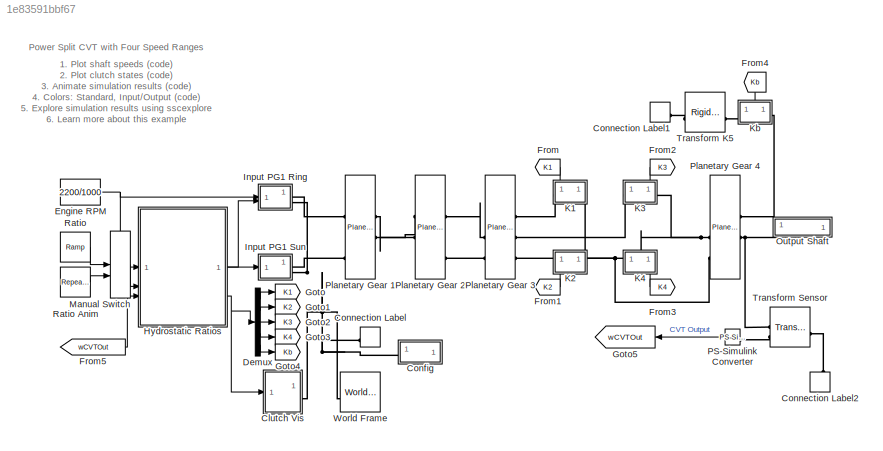
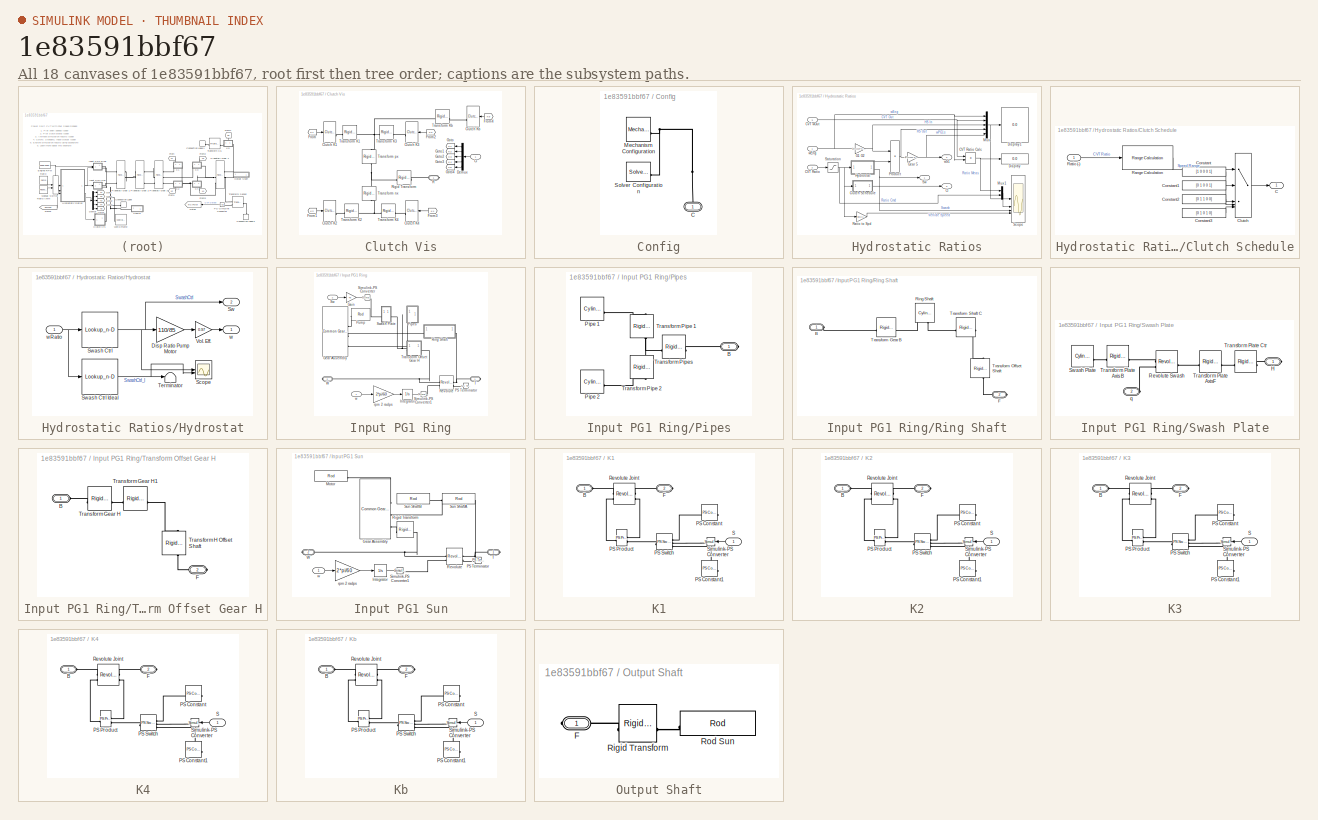
[diagram: thumbnail index - all 18 canvases of the model, root first then tree order]
MODEL slx_1e83591bbf67
KIND model
CONFIG AbsTol = 1e-4
CONFIG EnableMultiTasking = on
CONFIG FixedStep = auto
CONFIG MaxStep = 0.01
CONFIG MinStep = auto
CONFIG PostLoadFcn = set_param([bdroot '/Manual Switch'], 'sw', '1')
CONFIG PreLoadFcn = cvtPar = sm_cvt_power_split_pg_4range_param('InputOutput', HMPST);
CONFIG RelTol = 1e-3
CONFIG SampleTimeConstraint = Unconstrained
CONFIG SolverName = daessc
CONFIG StartFcn = tic
CONFIG StartTime = 0.0
CONFIG StopFcn = Elapsed_Sim_Time = toc;\ndisp(['Elapsed Sim Time = ' num2str(Elapsed_Sim_Time)]);
CONFIG StopTime = cvtPar.ratioInp.t(end)
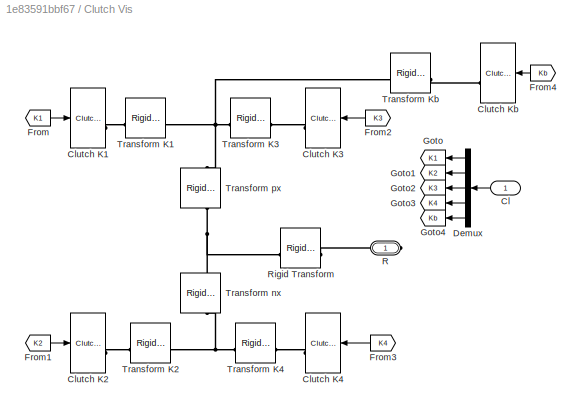
BLOCK [SubSystem] Clutch Vis
BLOCK [Inport] Clutch Vis/Cl
BLOCK [Reference] Clutch Vis/Clutch K1  REF=planetary_gear_lib/Clutch Visual  (lib defined in slx_244bc64403c8, slx_f92dde08cbf6)
  SourceBlock = planetary_gear_lib/Clutch Visual
  SourceType = SubSystem
BLOCK [Reference] Clutch Vis/Clutch K2  REF=planetary_gear_lib/Clutch Visual  (lib defined in slx_244bc64403c8, slx_f92dde08cbf6)
  SourceBlock = planetary_gear_lib/Clutch Visual
  SourceType = SubSystem
BLOCK [Reference] Clutch Vis/Clutch K3  REF=planetary_gear_lib/Clutch Visual  (lib defined in slx_244bc64403c8, slx_f92dde08cbf6)
  SourceBlock = planetary_gear_lib/Clutch Visual
  SourceType = SubSystem
BLOCK [Reference] Clutch Vis/Clutch K4  REF=planetary_gear_lib/Clutch Visual  (lib defined in slx_244bc64403c8, slx_f92dde08cbf6)
  SourceBlock = planetary_gear_lib/Clutch Visual
  SourceType = SubSystem
BLOCK [Reference] Clutch Vis/Clutch Kb  REF=planetary_gear_lib/Clutch Visual  (lib defined in slx_244bc64403c8, slx_f92dde08cbf6)
  SourceBlock = planetary_gear_lib/Clutch Visual
  SourceType = SubSystem
BLOCK [Demux] Clutch Vis/Demux
  Outputs = 5
BLOCK [From] Clutch Vis/From
  GotoTag = K1
BLOCK [From] Clutch Vis/From1
  GotoTag = K2
BLOCK [From] Clutch Vis/From2
  GotoTag = K3
BLOCK [From] Clutch Vis/From3
  GotoTag = K4
BLOCK [From] Clutch Vis/From4
  GotoTag = Kb
BLOCK [Goto] Clutch Vis/Goto
  GotoTag = K1
BLOCK [Goto] Clutch Vis/Goto1
  GotoTag = K2
BLOCK [Goto] Clutch Vis/Goto2
  GotoTag = K3
BLOCK [Goto] Clutch Vis/Goto3
  GotoTag = K4
BLOCK [Goto] Clutch Vis/Goto4
  GotoTag = Kb
BLOCK [PMIOPort] Clutch Vis/R
  Side = Right
BLOCK [Reference] Clutch Vis/Rigid Transform  REF=sm_lib/Frames and
Transforms/Rigid
Transform
  SourceBlock = sm_lib/Frames and\nTransforms/Rigid\nTransform
  SourceType = Rigid\nTransform
BLOCK [Reference] Clutch Vis/Transform K1  REF=sm_lib/Frames and
Transforms/Rigid
Transform
  SourceBlock = sm_lib/Frames and\nTransforms/Rigid\nTransform
  SourceType = Rigid\nTransform
BLOCK [Reference] Clutch Vis/Transform K2  REF=sm_lib/Frames and
Transforms/Rigid
Transform
  SourceBlock = sm_lib/Frames and\nTransforms/Rigid\nTransform
  SourceType = Rigid\nTransform
BLOCK [Reference] Clutch Vis/Transform K3  REF=sm_lib/Frames and
Transforms/Rigid
Transform
  SourceBlock = sm_lib/Frames and\nTransforms/Rigid\nTransform
  SourceType = Rigid\nTransform
BLOCK [Reference] Clutch Vis/Transform K4  REF=sm_lib/Frames and
Transforms/Rigid
Transform
  SourceBlock = sm_lib/Frames and\nTransforms/Rigid\nTransform
  SourceType = Rigid\nTransform
BLOCK [Reference] Clutch Vis/Transform Kb  REF=sm_lib/Frames and
Transforms/Rigid
Transform
  SourceBlock = sm_lib/Frames and\nTransforms/Rigid\nTransform
  SourceType = Rigid\nTransform
BLOCK [Reference] Clutch Vis/Transform nx  REF=sm_lib/Frames and
Transforms/Rigid
Transform
  NameLocation = right
  SourceBlock = sm_lib/Frames and\nTransforms/Rigid\nTransform
  SourceType = Rigid\nTransform
BLOCK [Reference] Clutch Vis/Transform px  REF=sm_lib/Frames and
Transforms/Rigid
Transform
  NameLocation = right
  SourceBlock = sm_lib/Frames and\nTransforms/Rigid\nTransform
  SourceType = Rigid\nTransform
BLOCK [SubSystem] Config
BLOCK [PMIOPort] Config/C
  NameLocation = right
  Side = Left
BLOCK [Reference] Config/Mechanism Configuration  REF=sm_lib/Utilities/Mechanism
Configuration
  SourceBlock = sm_lib/Utilities/Mechanism\nConfiguration
  SourceType = Mechanism\nConfiguration
BLOCK [Reference] Config/Solver Configuration  REF=nesl_utility/Solver
Configuration
  SourceBlock = nesl_utility/Solver\nConfiguration
  SourceType = Solver\nConfiguration
BLOCK [ConnectionLabel] Connection Label
  Label = W
  NameLocation = left
BLOCK [ConnectionLabel] Connection Label1
  Label = W
BLOCK [ConnectionLabel] Connection Label2
  Label = W
  NameLocation = left
BLOCK [Demux] Demux
  Outputs = 5
BLOCK [Constant] Engine RPM
  NameLocation = top
  Value = 2200/1000
BLOCK [From] From
  GotoTag = K1
  NameLocation = top
BLOCK [From] From1
  GotoTag = K2
BLOCK [From] From2
  GotoTag = K3
  NameLocation = top
BLOCK [From] From3
  GotoTag = K4
BLOCK [From] From4
  GotoTag = Kb
  NameLocation = left
BLOCK [From] From5
  GotoTag = wCVTOut
BLOCK [Goto] Goto
  GotoTag = K1
BLOCK [Goto] Goto1
  GotoTag = K2
BLOCK [Goto] Goto2
  GotoTag = K3
BLOCK [Goto] Goto3
  GotoTag = K4
BLOCK [Goto] Goto4
  GotoTag = Kb
BLOCK [Goto] Goto5
  GotoTag = wCVTOut
  NameLocation = top
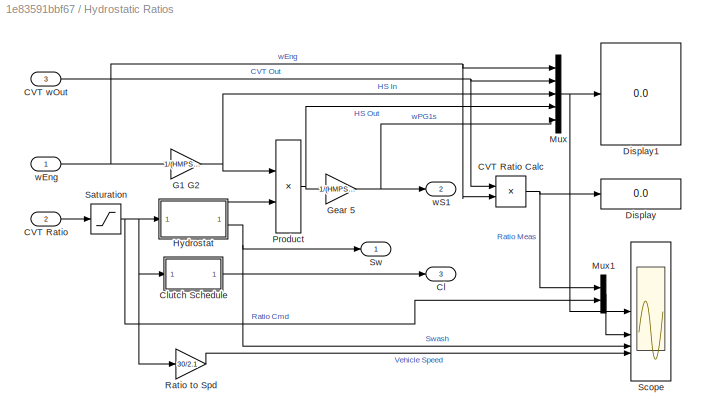
BLOCK [SubSystem] Hydrostatic Ratios
BLOCK [Inport] Hydrostatic Ratios/CVT Ratio
  Port = 2
BLOCK [Product] Hydrostatic Ratios/CVT Ratio Calc
  Inputs = */
BLOCK [Inport] Hydrostatic Ratios/CVT wOut
  Port = 3
BLOCK [Outport] Hydrostatic Ratios/Cl
  Port = 3
BLOCK [SubSystem] Hydrostatic Ratios/Clutch Schedule
BLOCK [Outport] Hydrostatic Ratios/Clutch Schedule/C
BLOCK [MultiPortSwitch] Hydrostatic Ratios/Clutch Schedule/Clutch
  InputSameDT = off
  Inputs = 4
  SaturateOnIntegerOverflow = off
BLOCK [Constant] Hydrostatic Ratios/Clutch Schedule/Constant
  Value = [1 0 0 0 1]
BLOCK [Constant] Hydrostatic Ratios/Clutch Schedule/Constant1
  Value = [0 1 0 0 1]
BLOCK [Constant] Hydrostatic Ratios/Clutch Schedule/Constant2
  Value = [0 1 1 0 0]
BLOCK [Constant] Hydrostatic Ratios/Clutch Schedule/Constant3
  Value = [0 1 0 1 0]
BLOCK [Reference] Hydrostatic Ratios/Clutch Schedule/Range Calculation  REF=sm_wheel_loader_lib/Controller/CVT Ratio Ctrl/Range Calculation  (lib defined in slx_2f13f0afc9e9, slx_78fdec152d5c)
  SourceBlock = sm_wheel_loader_lib/Controller/CVT Ratio Ctrl/Range Calculation
BLOCK [Inport] Hydrostatic Ratios/Clutch Schedule/Ratio (-)
BLOCK [Display] Hydrostatic Ratios/Display
  Decimation = 1
BLOCK [Display] Hydrostatic Ratios/Display1
  Decimation = 1
BLOCK [Gain] Hydrostatic Ratios/G1 G2
  Gain = 1/(HMPST.GearTrain.Gear2.TeethNum/HMPST.GearTrain.Gear1.TeethNum*HMPST.GearTrain.Gear3.TeethNum/HMPST.GearTrain.Gear2.TeethNum)
BLOCK [Gain] Hydrostatic Ratios/Gear 5
  Gain = 1/(HMPST.GearTrain.Gear5.TeethNum/HMPST.GearTrain.Gear4.TeethNum)
BLOCK [SubSystem] Hydrostatic Ratios/Hydrostat
BLOCK [Gain] Hydrostatic Ratios/Hydrostat/Disp Ratio Pump Motor
  Gain = 110/85
BLOCK [Scope] Hydrostatic Ratios/Hydrostat/Scope
  Floating = off
  NumInputPorts = 2
  ScopeSpecificationString = Simulink.scopes.TimeScopeBlockCfg('CurrentConfiguration', extmgr.ConfigurationSet(extmgr.Configuration('Core','General UI',true),extmgr.Configuration('Core','Source UI',true),extmgr.Configuration('Sources','WiredSimulink',true,'DataLoggingVariableName','ScopeData1'),extmgr.Configuration('Visuals','Time Domain',true,'SerializedDisplays',{struct('MinYLimReal','-0.92168','MaxYLimReal','0.94055','YLab...<+1411ch>
BLOCK [Outport] Hydrostatic Ratios/Hydrostat/Sw
  Port = 2
BLOCK [Lookup_n-D] Hydrostatic Ratios/Hydrostat/Swash Ctrl
  BeginIndexSearchUsingPreviousIndexResult = on
  BreakpointsForDimension1 = HMPST.Ctrl.Swash.XY_A(:,2)
  InputPortMap = u0
  InternalRulePriority = Speed
  NumberOfTableDimensions = 1
  RndMeth = Simplest
  Table = HMPST.Ctrl.Swash.XY_A(:,1)
BLOCK [Lookup_n-D] Hydrostatic Ratios/Hydrostat/Swash Ctrl Ideal
  BeginIndexSearchUsingPreviousIndexResult = on
  BreakpointsForDimension1 = HMPST.Ctrl.Swash.XY_I(:,2)
  InputPortMap = u0
  InternalRulePriority = Speed
  NumberOfTableDimensions = 1
  RndMeth = Simplest
  Table = HMPST.Ctrl.Swash.XY_I(:,1)
BLOCK [Terminator] Hydrostatic Ratios/Hydrostat/Terminator
BLOCK [Gain] Hydrostatic Ratios/Hydrostat/Vol. Eff.
  Gain = 0.97
BLOCK [Outport] Hydrostatic Ratios/Hydrostat/w
BLOCK [Inport] Hydrostatic Ratios/Hydrostat/wRatio
BLOCK [Mux] Hydrostatic Ratios/Mux
  DisplayOption = bar
  Inputs = 5
BLOCK [Mux] Hydrostatic Ratios/Mux1
  DisplayOption = bar
  Inputs = 2
BLOCK [Product] Hydrostatic Ratios/Product
BLOCK [Gain] Hydrostatic Ratios/Ratio to Spd
  Gain = 30/2.1
BLOCK [Saturate] Hydrostatic Ratios/Saturation
  UpperLimit = 2.1
  ZeroCross = off
BLOCK [Scope] Hydrostatic Ratios/Scope
  Floating = off
  NameLocation = top
  NumInputPorts = 4
  ScopeSpecificationString = Simulink.scopes.TimeScopeBlockCfg('CurrentConfiguration', extmgr.ConfigurationSet(extmgr.Configuration('Core','General UI',true),extmgr.Configuration('Core','Source UI',true),extmgr.Configuration('Sources','WiredSimulink',true),extmgr.Configuration('Visuals','Time Domain',true,'SerializedDisplays',{struct('MinYLimReal','-4.0523','MaxYLimReal','5.54315','YLabelReal','','MinYLimMag','0.00000','MaxYL...<+3611ch>
BLOCK [Outport] Hydrostatic Ratios/Sw
BLOCK [Inport] Hydrostatic Ratios/wEng
BLOCK [Outport] Hydrostatic Ratios/wS1
  Port = 2
BLOCK [SubSystem] Input PG1 Ring
  NameLocation = top
  Tag = PublishSubsystem
BLOCK [Gain] Input PG1 Ring/Gain
  Gain = 45
BLOCK [Reference] Input PG1 Ring/Gear Assembly  REF=Multibody_Parts_Lib/Gears/Assemblies/Common Gear Assembly
  SourceBlock = Multibody_Parts_Lib/Gears/Assemblies/Common Gear Assembly
  SourceType = Common Gear Assembly
  Tag = PublishSubsystem
BLOCK [Integrator] Input PG1 Ring/Integrator
BLOCK [Reference] Input PG1 Ring/PS Terminator  REF=fl_lib/Physical Signals/Sinks/PS Terminator
  SourceBlock = fl_lib/Physical Signals/Sinks/PS Terminator
  SourceType = PS Terminator
BLOCK [SubSystem] Input PG1 Ring/Pipes
BLOCK [PMIOPort] Input PG1 Ring/Pipes/B
  Side = Right
BLOCK [Reference] Input PG1 Ring/Pipes/Pipe 1  REF=sm_lib/Body Elements/Cylindrical Solid
  SourceBlock = sm_lib/Body Elements/Cylindrical Solid
  SourceType = Cylindrical Solid
BLOCK [Reference] Input PG1 Ring/Pipes/Pipe 2  REF=sm_lib/Body Elements/Cylindrical Solid
  SourceBlock = sm_lib/Body Elements/Cylindrical Solid
  SourceType = Cylindrical Solid
BLOCK [Reference] Input PG1 Ring/Pipes/Transform Pipe 1  REF=sm_lib/Frames and
Transforms/Rigid
Transform
  NameLocation = left
  SourceBlock = sm_lib/Frames and\nTransforms/Rigid\nTransform
  SourceType = Rigid\nTransform
BLOCK [Reference] Input PG1 Ring/Pipes/Transform Pipe 2  REF=sm_lib/Frames and
Transforms/Rigid
Transform
  NameLocation = left
  SourceBlock = sm_lib/Frames and\nTransforms/Rigid\nTransform
  SourceType = Rigid\nTransform
BLOCK [Reference] Input PG1 Ring/Pipes/Transform Pipes  REF=sm_lib/Frames and
Transforms/Rigid
Transform
  SourceBlock = sm_lib/Frames and\nTransforms/Rigid\nTransform
  SourceType = Rigid\nTransform
BLOCK [Reference] Input PG1 Ring/Pump  REF=Multibody_Parts_Lib/Basic/Rod
  SourceBlock = Multibody_Parts_Lib/Basic/Rod
  SourceType = Rod
BLOCK [Reference] Input PG1 Ring/Revolute  REF=sm_lib/Joints/Revolute Joint
  SourceBlock = sm_lib/Joints/Revolute Joint
  SourceType = Revolute Joint
BLOCK [SubSystem] Input PG1 Ring/Ring Shaft
BLOCK [PMIOPort] Input PG1 Ring/Ring Shaft/B
  Side = Left
BLOCK [PMIOPort] Input PG1 Ring/Ring Shaft/F
  Port = 2
  Side = Right
BLOCK [Reference] Input PG1 Ring/Ring Shaft/Ring Shaft  REF=Multibody_Parts_Lib/Basic/Cylinder
  NameLocation = right
  SourceBlock = Multibody_Parts_Lib/Basic/Cylinder
  SourceType = Cylinder with Hole
BLOCK [Reference] Input PG1 Ring/Ring Shaft/Transform Gear B  REF=sm_lib/Frames and
Transforms/Rigid
Transform
  SourceBlock = sm_lib/Frames and\nTransforms/Rigid\nTransform
  SourceType = Rigid\nTransform
BLOCK [Reference] Input PG1 Ring/Ring Shaft/Transform Offset Shaft  REF=sm_lib/Frames and
Transforms/Rigid
Transform
  NameLocation = right
  SourceBlock = sm_lib/Frames and\nTransforms/Rigid\nTransform
  SourceType = Rigid\nTransform
BLOCK [Reference] Input PG1 Ring/Ring Shaft/Transform Shaft C  REF=sm_lib/Frames and
Transforms/Rigid
Transform
  SourceBlock = sm_lib/Frames and\nTransforms/Rigid\nTransform
  SourceType = Rigid\nTransform
BLOCK [Reference] Input PG1 Ring/Simulink-PS Converter  REF=nesl_utility/Simulink-PS
Converter
  SourceBlock = nesl_utility/Simulink-PS\nConverter
  SourceType = Simulink-PS\nConverter
BLOCK [Reference] Input PG1 Ring/Simulink-PS Converter1  REF=nesl_utility/Simulink-PS
Converter
  SourceBlock = nesl_utility/Simulink-PS\nConverter
  SourceType = Simulink-PS\nConverter
BLOCK [Inport] Input PG1 Ring/Sw
  Port = 2
BLOCK [SubSystem] Input PG1 Ring/Swash Plate
BLOCK [PMIOPort] Input PG1 Ring/Swash Plate/H
  Side = Right
BLOCK [Reference] Input PG1 Ring/Swash Plate/Revolute Swash  REF=sm_lib/Joints/Revolute Joint
  SourceBlock = sm_lib/Joints/Revolute Joint
  SourceType = Revolute Joint
BLOCK [Reference] Input PG1 Ring/Swash Plate/Swash Plate  REF=sm_lib/Body Elements/Cylindrical Solid
  SourceBlock = sm_lib/Body Elements/Cylindrical Solid
  SourceType = Cylindrical Solid
BLOCK [Reference] Input PG1 Ring/Swash Plate/Transform Plate Axis B  REF=sm_lib/Frames and
Transforms/Rigid
Transform
  SourceBlock = sm_lib/Frames and\nTransforms/Rigid\nTransform
  SourceType = Rigid\nTransform
BLOCK [Reference] Input PG1 Ring/Swash Plate/Transform Plate AxisF  REF=sm_lib/Frames and
Transforms/Rigid
Transform
  SourceBlock = sm_lib/Frames and\nTransforms/Rigid\nTransform
  SourceType = Rigid\nTransform
BLOCK [Reference] Input PG1 Ring/Swash Plate/Transform Plate Ctr  REF=sm_lib/Frames and
Transforms/Rigid
Transform
  SourceBlock = sm_lib/Frames and\nTransforms/Rigid\nTransform
  SourceType = Rigid\nTransform
BLOCK [PMIOPort] Input PG1 Ring/Swash Plate/q
  Port = 2
  Side = Left
BLOCK [PMIOPort] Input PG1 Ring/T
  Side = Right
BLOCK [SubSystem] Input PG1 Ring/Transform Offset Gear H
BLOCK [PMIOPort] Input PG1 Ring/Transform Offset Gear H/B
  Side = Left
BLOCK [PMIOPort] Input PG1 Ring/Transform Offset Gear H/F
  Port = 2
  Side = Right
BLOCK [Reference] Input PG1 Ring/Transform Offset Gear H/Transform Gear H  REF=sm_lib/Frames and
Transforms/Rigid
Transform
  SourceBlock = sm_lib/Frames and\nTransforms/Rigid\nTransform
  SourceType = Rigid\nTransform
BLOCK [Reference] Input PG1 Ring/Transform Offset Gear H/Transform Gear H1  REF=sm_lib/Frames and
Transforms/Rigid
Transform
  SourceBlock = sm_lib/Frames and\nTransforms/Rigid\nTransform
  SourceType = Rigid\nTransform
BLOCK [Reference] Input PG1 Ring/Transform Offset Gear H/Transform H Offset Shaft  REF=sm_lib/Frames and
Transforms/Rigid
Transform
  NameLocation = left
  SourceBlock = sm_lib/Frames and\nTransforms/Rigid\nTransform
  SourceType = Rigid\nTransform
BLOCK [PMIOPort] Input PG1 Ring/W
  Port = 2
  Side = Right
BLOCK [Gain] Input PG1 Ring/rpm 2 radps
  Gain = 2*pi/60
BLOCK [Inport] Input PG1 Ring/w
BLOCK [SubSystem] Input PG1 Sun
  NameLocation = top
  Tag = PublishSubsystem
BLOCK [Reference] Input PG1 Sun/Gear Assembly  REF=Multibody_Parts_Lib/Gears/Assemblies/Common Gear Assembly
  SourceBlock = Multibody_Parts_Lib/Gears/Assemblies/Common Gear Assembly
  SourceType = Common Gear Assembly
  Tag = PublishSubsystem
BLOCK [Integrator] Input PG1 Sun/Integrator
BLOCK [Reference] Input PG1 Sun/Motor  REF=Multibody_Parts_Lib/Basic/Rod
  SourceBlock = Multibody_Parts_Lib/Basic/Rod
  SourceType = Rod
BLOCK [Reference] Input PG1 Sun/PS Terminator  REF=fl_lib/Physical Signals/Sinks/PS Terminator
  SourceBlock = fl_lib/Physical Signals/Sinks/PS Terminator
  SourceType = PS Terminator
BLOCK [Reference] Input PG1 Sun/Revolute  REF=sm_lib/Joints/Revolute Joint
  SourceBlock = sm_lib/Joints/Revolute Joint
  SourceType = Revolute Joint
BLOCK [Reference] Input PG1 Sun/Rigid Transform  REF=sm_lib/Frames and
Transforms/Rigid
Transform
  SourceBlock = sm_lib/Frames and\nTransforms/Rigid\nTransform
  SourceType = Rigid\nTransform
BLOCK [Reference] Input PG1 Sun/Simulink-PS Converter1  REF=nesl_utility/Simulink-PS
Converter
  SourceBlock = nesl_utility/Simulink-PS\nConverter
  SourceType = Simulink-PS\nConverter
BLOCK [Reference] Input PG1 Sun/Sun ShaftA  REF=Multibody_Parts_Lib/Basic/Rod
  NameLocation = top
  SourceBlock = Multibody_Parts_Lib/Basic/Rod
  SourceType = Rod
BLOCK [Reference] Input PG1 Sun/Sun ShaftB  REF=Multibody_Parts_Lib/Basic/Rod
  NameLocation = top
  SourceBlock = Multibody_Parts_Lib/Basic/Rod
  SourceType = Rod
BLOCK [PMIOPort] Input PG1 Sun/T
  NameLocation = top
  Side = Right
BLOCK [PMIOPort] Input PG1 Sun/W
  NameLocation = top
  Port = 2
  Side = Right
BLOCK [Gain] Input PG1 Sun/rpm 2 radps
  Gain = 2*pi/60
BLOCK [Inport] Input PG1 Sun/w
BLOCK [SubSystem] K1
  PortSchema = {"entries":[{"content":{"sides":[{"content":{"connectorIds":["LConn1"]},"type":"ConnectorPlacement.EquallySpacedRectSide","uuid":"8540058f-cef1-4155-b235-6fcdc2adbf7a"},{"content":{"connectorIds":["RConn1"],"side":"RIGHT"},"type":"ConnectorPlacement.EquallySpacedRectSide","uuid":"a5955f9a-e2a5-407c-ab0f-07844d9b5a94"},{"content":{"connectorIds":["In1"],"side":"TOP"},"type":"ConnectorPlacement.Equa...<+250ch>  <repeated x5 — deduplicated; at blocks: K1, K2, K3, K4, Kb>
BLOCK [PMIOPort] K1/B
  Side = Left
BLOCK [PMIOPort] K1/F
  Port = 2
  Side = Right
BLOCK [Reference] K1/PS Constant  REF=fl_lib/Physical Signals/Sources/PS Constant
  NameLocation = top
  SourceBlock = fl_lib/Physical Signals/Sources/PS Constant
  SourceType = PS Constant
BLOCK [Reference] K1/PS Constant1  REF=fl_lib/Physical Signals/Sources/PS Constant
  NameLocation = top
  SourceBlock = fl_lib/Physical Signals/Sources/PS Constant
  SourceType = PS Constant
BLOCK [Reference] K1/PS Product  REF=fl_lib/Physical Signals/Functions/PS Product
  SourceBlock = fl_lib/Physical Signals/Functions/PS Product
  SourceType = PS Product
BLOCK [Reference] K1/PS Switch  REF=fl_lib/Physical Signals/Nonlinear Operators/PS Switch
  SourceBlock = fl_lib/Physical Signals/Nonlinear Operators/PS Switch
  SourceType = PS Switch
BLOCK [Reference] K1/Revolute Joint  REF=sm_lib/Joints/Revolute Joint
  SourceBlock = sm_lib/Joints/Revolute Joint
  SourceType = Revolute Joint
BLOCK [Inport] K1/S
BLOCK [Reference] K1/Simulink-PS Converter  REF=nesl_utility/Simulink-PS
Converter
  SourceBlock = nesl_utility/Simulink-PS\nConverter
  SourceType = Simulink-PS\nConverter
BLOCK [SubSystem] K2
  NameLocation = top
BLOCK [PMIOPort] K2/B
  Side = Left
BLOCK [PMIOPort] K2/F
  Port = 2
  Side = Right
BLOCK [Reference] K2/PS Constant  REF=fl_lib/Physical Signals/Sources/PS Constant
  NameLocation = top
  SourceBlock = fl_lib/Physical Signals/Sources/PS Constant
  SourceType = PS Constant
BLOCK [Reference] K2/PS Constant1  REF=fl_lib/Physical Signals/Sources/PS Constant
  NameLocation = top
  SourceBlock = fl_lib/Physical Signals/Sources/PS Constant
  SourceType = PS Constant
BLOCK [Reference] K2/PS Product  REF=fl_lib/Physical Signals/Functions/PS Product
  SourceBlock = fl_lib/Physical Signals/Functions/PS Product
  SourceType = PS Product
BLOCK [Reference] K2/PS Switch  REF=fl_lib/Physical Signals/Nonlinear Operators/PS Switch
  SourceBlock = fl_lib/Physical Signals/Nonlinear Operators/PS Switch
  SourceType = PS Switch
BLOCK [Reference] K2/Revolute Joint  REF=sm_lib/Joints/Revolute Joint
  SourceBlock = sm_lib/Joints/Revolute Joint
  SourceType = Revolute Joint
BLOCK [Inport] K2/S
BLOCK [Reference] K2/Simulink-PS Converter  REF=nesl_utility/Simulink-PS
Converter
  SourceBlock = nesl_utility/Simulink-PS\nConverter
  SourceType = Simulink-PS\nConverter
BLOCK [SubSystem] K3
BLOCK [PMIOPort] K3/B
  Side = Left
BLOCK [PMIOPort] K3/F
  Port = 2
  Side = Right
BLOCK [Reference] K3/PS Constant  REF=fl_lib/Physical Signals/Sources/PS Constant
  NameLocation = top
  SourceBlock = fl_lib/Physical Signals/Sources/PS Constant
  SourceType = PS Constant
BLOCK [Reference] K3/PS Constant1  REF=fl_lib/Physical Signals/Sources/PS Constant
  NameLocation = top
  SourceBlock = fl_lib/Physical Signals/Sources/PS Constant
  SourceType = PS Constant
BLOCK [Reference] K3/PS Product  REF=fl_lib/Physical Signals/Functions/PS Product
  SourceBlock = fl_lib/Physical Signals/Functions/PS Product
  SourceType = PS Product
BLOCK [Reference] K3/PS Switch  REF=fl_lib/Physical Signals/Nonlinear Operators/PS Switch
  SourceBlock = fl_lib/Physical Signals/Nonlinear Operators/PS Switch
  SourceType = PS Switch
BLOCK [Reference] K3/Revolute Joint  REF=sm_lib/Joints/Revolute Joint
  SourceBlock = sm_lib/Joints/Revolute Joint
  SourceType = Revolute Joint
BLOCK [Inport] K3/S
BLOCK [Reference] K3/Simulink-PS Converter  REF=nesl_utility/Simulink-PS
Converter
  SourceBlock = nesl_utility/Simulink-PS\nConverter
  SourceType = Simulink-PS\nConverter
BLOCK [SubSystem] K4
  NameLocation = top
BLOCK [PMIOPort] K4/B
  Side = Left
BLOCK [PMIOPort] K4/F
  Port = 2
  Side = Right
BLOCK [Reference] K4/PS Constant  REF=fl_lib/Physical Signals/Sources/PS Constant
  NameLocation = top
  SourceBlock = fl_lib/Physical Signals/Sources/PS Constant
  SourceType = PS Constant
BLOCK [Reference] K4/PS Constant1  REF=fl_lib/Physical Signals/Sources/PS Constant
  NameLocation = top
  SourceBlock = fl_lib/Physical Signals/Sources/PS Constant
  SourceType = PS Constant
BLOCK [Reference] K4/PS Product  REF=fl_lib/Physical Signals/Functions/PS Product
  SourceBlock = fl_lib/Physical Signals/Functions/PS Product
  SourceType = PS Product
BLOCK [Reference] K4/PS Switch  REF=fl_lib/Physical Signals/Nonlinear Operators/PS Switch
  SourceBlock = fl_lib/Physical Signals/Nonlinear Operators/PS Switch
  SourceType = PS Switch
BLOCK [Reference] K4/Revolute Joint  REF=sm_lib/Joints/Revolute Joint
  SourceBlock = sm_lib/Joints/Revolute Joint
  SourceType = Revolute Joint
BLOCK [Inport] K4/S
BLOCK [Reference] K4/Simulink-PS Converter  REF=nesl_utility/Simulink-PS
Converter
  SourceBlock = nesl_utility/Simulink-PS\nConverter
  SourceType = Simulink-PS\nConverter
BLOCK [SubSystem] Kb
BLOCK [PMIOPort] Kb/B
  Side = Left
BLOCK [PMIOPort] Kb/F
  Port = 2
  Side = Right
BLOCK [Reference] Kb/PS Constant  REF=fl_lib/Physical Signals/Sources/PS Constant
  NameLocation = top
  SourceBlock = fl_lib/Physical Signals/Sources/PS Constant
  SourceType = PS Constant
BLOCK [Reference] Kb/PS Constant1  REF=fl_lib/Physical Signals/Sources/PS Constant
  NameLocation = top
  SourceBlock = fl_lib/Physical Signals/Sources/PS Constant
  SourceType = PS Constant
BLOCK [Reference] Kb/PS Product  REF=fl_lib/Physical Signals/Functions/PS Product
  SourceBlock = fl_lib/Physical Signals/Functions/PS Product
  SourceType = PS Product
BLOCK [Reference] Kb/PS Switch  REF=fl_lib/Physical Signals/Nonlinear Operators/PS Switch
  SourceBlock = fl_lib/Physical Signals/Nonlinear Operators/PS Switch
  SourceType = PS Switch
BLOCK [Reference] Kb/Revolute Joint  REF=sm_lib/Joints/Revolute Joint
  SourceBlock = sm_lib/Joints/Revolute Joint
  SourceType = Revolute Joint
BLOCK [Inport] Kb/S
BLOCK [Reference] Kb/Simulink-PS Converter  REF=nesl_utility/Simulink-PS
Converter
  SourceBlock = nesl_utility/Simulink-PS\nConverter
  SourceType = Simulink-PS\nConverter
BLOCK [ManualSwitch] Manual Switch
BLOCK [SubSystem] Output Shaft
BLOCK [PMIOPort] Output Shaft/F
  Side = Right
BLOCK [Reference] Output Shaft/Rigid Transform  REF=sm_lib/Frames and
Transforms/Rigid
Transform
  SourceBlock = sm_lib/Frames and\nTransforms/Rigid\nTransform
  SourceType = Rigid\nTransform
BLOCK [Reference] Output Shaft/Rod Sun  REF=Multibody_Parts_Lib/Basic/Rod
  NameLocation = top
  SourceBlock = Multibody_Parts_Lib/Basic/Rod
  SourceType = Rod
BLOCK [Reference] PS-Simulink Converter  REF=nesl_utility/PS-Simulink
Converter
  SourceBlock = nesl_utility/PS-Simulink\nConverter
  SourceType = PS-Simulink\nConverter
BLOCK [Reference] Planetary Gear 1  REF=planetary_gear_lib/Planetary Gear  (lib defined in slx_244bc64403c8, slx_f92dde08cbf6)
  SourceBlock = planetary_gear_lib/Planetary Gear
  Tag = PublishSubsystem
BLOCK [Reference] Planetary Gear 2  REF=planetary_gear_lib/Planetary Gear  (lib defined in slx_244bc64403c8, slx_f92dde08cbf6)
  SourceBlock = planetary_gear_lib/Planetary Gear
  Tag = PublishSubsystem
BLOCK [Reference] Planetary Gear 3  REF=planetary_gear_lib/Planetary Gear  (lib defined in slx_244bc64403c8, slx_f92dde08cbf6)
  SourceBlock = planetary_gear_lib/Planetary Gear
  Tag = PublishSubsystem
BLOCK [Reference] Planetary Gear 4  REF=planetary_gear_lib/Planetary Gear  (lib defined in slx_244bc64403c8, slx_f92dde08cbf6)
  SourceBlock = planetary_gear_lib/Planetary Gear
  Tag = PublishSubsystem
BLOCK [Reference] Ratio  REF=simulink/Sources/Ramp
  NameLocation = top
  SourceBlock = simulink/Sources/Ramp
  SourceType = Ramp
BLOCK [Reference] Ratio Anim  REF=simulink/Sources/Repeating
Sequence
  SourceBlock = simulink/Sources/Repeating\nSequence
  SourceType = Repeating table
BLOCK [Reference] Transform K5  REF=sm_lib/Frames and
Transforms/Rigid
Transform
  SourceBlock = sm_lib/Frames and\nTransforms/Rigid\nTransform
  SourceType = Rigid\nTransform
BLOCK [Reference] Transform Sensor  REF=sm_lib/Frames and
Transforms/Transform
Sensor
  NameLocation = top
  SourceBlock = sm_lib/Frames and\nTransforms/Transform\nSensor
  SourceType = Transform\nSensor
BLOCK [Reference] World Frame  REF=sm_lib/Frames and
Transforms/World Frame
  SourceBlock = sm_lib/Frames and\nTransforms/World Frame
  SourceType = World Frame
ANNOTATION (root): 1. Plot shaft speeds ( code ) 2. Plot clutch states ( code ) 3. Animate simulation results ( code ) 4. Colors: Standard , Input/Output ( code ) 5. Explore simulation results using sscexplore 6. Learn more about this example
ANNOTATION (root): Power Split CVT with Four Speed Ranges
LINE Clutch Vis/Cl:1 -> Clutch Vis/Demux:1
LINE Clutch Vis/Demux:1 -> Clutch Vis/Goto:1
LINE Clutch Vis/Demux:2 -> Clutch Vis/Goto1:1
LINE Clutch Vis/Demux:3 -> Clutch Vis/Goto2:1
LINE Clutch Vis/Demux:4 -> Clutch Vis/Goto3:1
LINE Clutch Vis/Demux:5 -> Clutch Vis/Goto4:1
LINE Clutch Vis/From1:1 -> Clutch Vis/Clutch K2:1
LINE Clutch Vis/From2:1 -> Clutch Vis/Clutch K3:1
LINE Clutch Vis/From3:1 -> Clutch Vis/Clutch K4:1
LINE Clutch Vis/From4:1 -> Clutch Vis/Clutch Kb:1
LINE Clutch Vis/From:1 -> Clutch Vis/Clutch K1:1
LINE Demux:1 -> Goto:1
LINE Demux:2 -> Goto1:1
LINE Demux:3 -> Goto2:1
LINE Demux:4 -> Goto3:1
LINE Demux:5 -> Goto4:1
NET Engine RPM:1 -> Hydrostatic Ratios:1, Input PG1 Ring:1
LINE From1:1 -> K2:1
LINE From2:1 -> K3:1
LINE From3:1 -> K4:1
LINE From4:1 -> Kb:1
LINE From5:1 -> Hydrostatic Ratios:3
LINE From:1 -> K1:1
NET Hydrostatic Ratios/CVT Ratio Calc:1 -> Hydrostatic Ratios/Display:1, Hydrostatic Ratios/Mux1:1
LINE Hydrostatic Ratios/CVT Ratio:1 -> Hydrostatic Ratios/Saturation:1
NET Hydrostatic Ratios/CVT wOut:1 -> Hydrostatic Ratios/CVT Ratio Calc:1, Hydrostatic Ratios/Mux:2
LINE Hydrostatic Ratios/Clutch Schedule/Clutch:1 -> Hydrostatic Ratios/Clutch Schedule/C:1
LINE Hydrostatic Ratios/Clutch Schedule/Constant1:1 -> Hydrostatic Ratios/Clutch Schedule/Clutch:3
LINE Hydrostatic Ratios/Clutch Schedule/Constant2:1 -> Hydrostatic Ratios/Clutch Schedule/Clutch:4
LINE Hydrostatic Ratios/Clutch Schedule/Constant3:1 -> Hydrostatic Ratios/Clutch Schedule/Clutch:5
LINE Hydrostatic Ratios/Clutch Schedule/Constant:1 -> Hydrostatic Ratios/Clutch Schedule/Clutch:2
LINE Hydrostatic Ratios/Clutch Schedule/Range Calculation:1 -> Hydrostatic Ratios/Clutch Schedule/Clutch:1
LINE Hydrostatic Ratios/Clutch Schedule/Ratio (-):1 -> Hydrostatic Ratios/Clutch Schedule/Range Calculation:1
LINE Hydrostatic Ratios/Clutch Schedule:1 -> Hydrostatic Ratios/Cl:1
NET Hydrostatic Ratios/G1 G2:1 -> Hydrostatic Ratios/Mux:3, Hydrostatic Ratios/Product:1
NET Hydrostatic Ratios/Gear 5:1 -> Hydrostatic Ratios/Mux:5, Hydrostatic Ratios/wS1:1
LINE Hydrostatic Ratios/Hydrostat/Disp Ratio Pump Motor:1 -> Hydrostatic Ratios/Hydrostat/Vol. Eff.:1
NET Hydrostatic Ratios/Hydrostat/Swash Ctrl Ideal:1 -> Hydrostatic Ratios/Hydrostat/Scope:2, Hydrostatic Ratios/Hydrostat/Terminator:1
NET Hydrostatic Ratios/Hydrostat/Swash Ctrl:1 -> Hydrostatic Ratios/Hydrostat/Disp Ratio Pump Motor:1, Hydrostatic Ratios/Hydrostat/Scope:1, Hydrostatic Ratios/Hydrostat/Sw:1
LINE Hydrostatic Ratios/Hydrostat/Vol. Eff.:1 -> Hydrostatic Ratios/Hydrostat/w:1
NET Hydrostatic Ratios/Hydrostat/wRatio:1 -> Hydrostatic Ratios/Hydrostat/Swash Ctrl Ideal:1, Hydrostatic Ratios/Hydrostat/Swash Ctrl:1
LINE Hydrostatic Ratios/Hydrostat:1 -> Hydrostatic Ratios/Product:2
NET Hydrostatic Ratios/Hydrostat:2 -> Hydrostatic Ratios/Scope:3, Hydrostatic Ratios/Sw:1
LINE Hydrostatic Ratios/Mux1:1 -> Hydrostatic Ratios/Scope:2
NET Hydrostatic Ratios/Mux:1 -> Hydrostatic Ratios/Display1:1, Hydrostatic Ratios/Scope:1
NET Hydrostatic Ratios/Product:1 -> Hydrostatic Ratios/Gear 5:1, Hydrostatic Ratios/Mux:4
LINE Hydrostatic Ratios/Ratio to Spd:1 -> Hydrostatic Ratios/Scope:4
NET Hydrostatic Ratios/Saturation:1 -> Hydrostatic Ratios/Clutch Schedule:1, Hydrostatic Ratios/Hydrostat:1, Hydrostatic Ratios/Mux1:2, Hydrostatic Ratios/Ratio to Spd:1
NET Hydrostatic Ratios/wEng:1 -> Hydrostatic Ratios/CVT Ratio Calc:2, Hydrostatic Ratios/G1 G2:1, Hydrostatic Ratios/Mux:1
LINE Hydrostatic Ratios:1 -> Input PG1 Ring:2
LINE Hydrostatic Ratios:2 -> Input PG1 Sun:1
NET Hydrostatic Ratios:3 -> Clutch Vis:1, Demux:1
LINE Input PG1 Ring/Gain:1 -> Input PG1 Ring/Simulink-PS Converter:1
LINE Input PG1 Ring/Integrator:1 -> Input PG1 Ring/Simulink-PS Converter1:1
LINE Input PG1 Ring/Sw:1 -> Input PG1 Ring/Gain:1
LINE Input PG1 Ring/rpm 2 radps:1 -> Input PG1 Ring/Integrator:1
LINE Input PG1 Ring/w:1 -> Input PG1 Ring/rpm 2 radps:1
LINE Input PG1 Sun/Integrator:1 -> Input PG1 Sun/Simulink-PS Converter1:1
LINE Input PG1 Sun/rpm 2 radps:1 -> Input PG1 Sun/Integrator:1
LINE Input PG1 Sun/w:1 -> Input PG1 Sun/rpm 2 radps:1
LINE K1/S:1 -> K1/Simulink-PS Converter:1
LINE K2/S:1 -> K2/Simulink-PS Converter:1
LINE K3/S:1 -> K3/Simulink-PS Converter:1
LINE K4/S:1 -> K4/Simulink-PS Converter:1
LINE Kb/S:1 -> Kb/Simulink-PS Converter:1
LINE Manual Switch:1 -> Hydrostatic Ratios:2
LINE PS-Simulink Converter:1 -> Goto5:1
LINE Ratio Anim:1 -> Manual Switch:2
LINE Ratio:1 -> Manual Switch:1
PLINE Clutch Vis/Clutch K1:RConn1 -- Clutch Vis/Transform K1:LConn1
PLINE Clutch Vis/Clutch K2:RConn1 -- Clutch Vis/Transform K2:LConn1
PLINE Clutch Vis/Clutch K3:RConn1 -- Clutch Vis/Transform K3:RConn1
PLINE Clutch Vis/Clutch K4:RConn1 -- Clutch Vis/Transform K4:RConn1
PLINE Clutch Vis/Clutch Kb:RConn1 -- Clutch Vis/Transform Kb:RConn1
PLINE Clutch Vis/R:RConn1 -- Clutch Vis/Rigid Transform:LConn1
PNET net1: Clutch Vis/Rigid Transform:RConn1 -- Clutch Vis/Transform nx:RConn1 -- Clutch Vis/Transform px:LConn1
PNET net2: Clutch Vis/Transform K1:RConn1 -- Clutch Vis/Transform K3:LConn1 -- Clutch Vis/Transform Kb:LConn1 -- Clutch Vis/Transform px:RConn1
PNET net3: Clutch Vis/Transform K2:RConn1 -- Clutch Vis/Transform K4:LConn1 -- Clutch Vis/Transform nx:LConn1
PNET net4: Clutch Vis:RConn1 -- Config:LConn1 -- Connection Label:LConn1 -- Input PG1 Ring:RConn2 -- Input PG1 Sun:RConn2 -- World Frame:RConn1
PNET net5: Config/C:RConn1 -- Config/Mechanism Configuration:RConn1 -- Config/Solver Configuration:RConn1
PLINE Connection Label1:LConn1 -- Transform K5:LConn1
PLINE Connection Label2:LConn1 -- Transform Sensor:LConn1
PLINE Input PG1 Ring/Gear Assembly:LConn1 -- Input PG1 Ring/Pump:LConn1
PLINE Input PG1 Ring/Gear Assembly:LConn2 -- Input PG1 Ring/Ring Shaft:LConn1
PNET net6: Input PG1 Ring/Gear Assembly:LConn3 -- Input PG1 Ring/Pipes:RConn1 -- Input PG1 Ring/Swash Plate:RConn1 -- Input PG1 Ring/Transform Offset Gear H:LConn1
PLINE Input PG1 Ring/PS Terminator:LConn1 -- Input PG1 Ring/Revolute:RConn2
PLINE Input PG1 Ring/Pipes/B:RConn1 -- Input PG1 Ring/Pipes/Transform Pipes:LConn1
PLINE Input PG1 Ring/Pipes/Pipe 1:LConn1 -- Input PG1 Ring/Pipes/Transform Pipe 1:RConn1
PLINE Input PG1 Ring/Pipes/Pipe 2:LConn1 -- Input PG1 Ring/Pipes/Transform Pipe 2:LConn1
PNET net7: Input PG1 Ring/Pipes/Transform Pipe 1:LConn1 -- Input PG1 Ring/Pipes/Transform Pipe 2:RConn1 -- Input PG1 Ring/Pipes/Transform Pipes:RConn1
PNET net8: Input PG1 Ring/Revolute:LConn1 -- Input PG1 Ring/Transform Offset Gear H:RConn1 -- Input PG1 Ring/W:RConn1
PLINE Input PG1 Ring/Revolute:LConn2 -- Input PG1 Ring/Simulink-PS Converter1:RConn1
PNET net9: Input PG1 Ring/Revolute:RConn1 -- Input PG1 Ring/Ring Shaft:RConn1 -- Input PG1 Ring/T:RConn1
PLINE Input PG1 Ring/Ring Shaft/B:RConn1 -- Input PG1 Ring/Ring Shaft/Transform Gear B:LConn1
PLINE Input PG1 Ring/Ring Shaft/F:RConn1 -- Input PG1 Ring/Ring Shaft/Transform Offset Shaft:RConn1
PNET net10: Input PG1 Ring/Ring Shaft/Ring Shaft:RConn1 -- Input PG1 Ring/Ring Shaft/Transform Gear B:RConn1 -- Input PG1 Ring/Ring Shaft/Transform Shaft C:LConn1
PLINE Input PG1 Ring/Ring Shaft/Transform Offset Shaft:LConn1 -- Input PG1 Ring/Ring Shaft/Transform Shaft C:RConn1
PLINE Input PG1 Ring/Simulink-PS Converter:RConn1 -- Input PG1 Ring/Swash Plate:LConn1
PLINE Input PG1 Ring/Swash Plate/H:RConn1 -- Input PG1 Ring/Swash Plate/Transform Plate Ctr:LConn1
PLINE Input PG1 Ring/Swash Plate/Revolute Swash:LConn1 -- Input PG1 Ring/Swash Plate/Transform Plate Axis B:RConn1
PLINE Input PG1 Ring/Swash Plate/Revolute Swash:LConn2 -- Input PG1 Ring/Swash Plate/q:RConn1
PLINE Input PG1 Ring/Swash Plate/Revolute Swash:RConn1 -- Input PG1 Ring/Swash Plate/Transform Plate AxisF:RConn1
PLINE Input PG1 Ring/Swash Plate/Swash Plate:RConn1 -- Input PG1 Ring/Swash Plate/Transform Plate Axis B:LConn1
PLINE Input PG1 Ring/Swash Plate/Transform Plate AxisF:LConn1 -- Input PG1 Ring/Swash Plate/Transform Plate Ctr:RConn1
PLINE Input PG1 Ring/Transform Offset Gear H/B:RConn1 -- Input PG1 Ring/Transform Offset Gear H/Transform Gear H:LConn1
PLINE Input PG1 Ring/Transform Offset Gear H/F:RConn1 -- Input PG1 Ring/Transform Offset Gear H/Transform H Offset Shaft:RConn1
PLINE Input PG1 Ring/Transform Offset Gear H/Transform Gear H1:LConn1 -- Input PG1 Ring/Transform Offset Gear H/Transform Gear H:RConn1
PLINE Input PG1 Ring/Transform Offset Gear H/Transform Gear H1:RConn1 -- Input PG1 Ring/Transform Offset Gear H/Transform H Offset Shaft:LConn1
PLINE Input PG1 Ring:RConn1 -- Planetary Gear 1:LConn1
PLINE Input PG1 Sun/Gear Assembly:LConn1 -- Input PG1 Sun/Motor:RConn1
PNET net11: Input PG1 Sun/Gear Assembly:LConn2 -- Input PG1 Sun/Sun ShaftA:LConn1 -- Input PG1 Sun/Sun ShaftB:RConn1
PLINE Input PG1 Sun/Gear Assembly:LConn3 -- Input PG1 Sun/Rigid Transform:LConn1
PLINE Input PG1 Sun/PS Terminator:LConn1 -- Input PG1 Sun/Revolute:RConn2
PNET net12: Input PG1 Sun/Revolute:LConn1 -- Input PG1 Sun/Rigid Transform:RConn1 -- Input PG1 Sun/W:RConn1
PLINE Input PG1 Sun/Revolute:LConn2 -- Input PG1 Sun/Simulink-PS Converter1:RConn1
PNET net13: Input PG1 Sun/Revolute:RConn1 -- Input PG1 Sun/Sun ShaftA:RConn1 -- Input PG1 Sun/T:RConn1
PLINE Input PG1 Sun:RConn1 -- Planetary Gear 1:LConn3
PLINE K1/B:RConn1 -- K1/Revolute Joint:LConn1
PLINE K1/F:RConn1 -- K1/Revolute Joint:RConn1
PLINE K1/PS Constant1:RConn1 -- K1/PS Switch:LConn3
PLINE K1/PS Constant:RConn1 -- K1/PS Switch:LConn1
PLINE K1/PS Product:LConn1 -- K1/Revolute Joint:RConn2
PLINE K1/PS Product:LConn2 -- K1/PS Switch:RConn1
PLINE K1/PS Product:RConn1 -- K1/Revolute Joint:LConn2
PLINE K1/PS Switch:LConn2 -- K1/Simulink-PS Converter:RConn1
PLINE K1:LConn1 -- Planetary Gear 3:RConn1
PNET net14: K1:RConn1 -- K2:RConn1 -- K4:LConn1 -- Planetary Gear 4:LConn3
PLINE K2/B:RConn1 -- K2/Revolute Joint:LConn1
PLINE K2/F:RConn1 -- K2/Revolute Joint:RConn1
PLINE K2/PS Constant1:RConn1 -- K2/PS Switch:LConn3
PLINE K2/PS Constant:RConn1 -- K2/PS Switch:LConn1
PLINE K2/PS Product:LConn1 -- K2/Revolute Joint:RConn2
PLINE K2/PS Product:LConn2 -- K2/PS Switch:RConn1
PLINE K2/PS Product:RConn1 -- K2/Revolute Joint:LConn2
PLINE K2/PS Switch:LConn2 -- K2/Simulink-PS Converter:RConn1
PLINE K2:LConn1 -- Planetary Gear 3:RConn3
PLINE K3/B:RConn1 -- K3/Revolute Joint:LConn1
PLINE K3/F:RConn1 -- K3/Revolute Joint:RConn1
PLINE K3/PS Constant1:RConn1 -- K3/PS Switch:LConn3
PLINE K3/PS Constant:RConn1 -- K3/PS Switch:LConn1
PLINE K3/PS Product:LConn1 -- K3/Revolute Joint:RConn2
PLINE K3/PS Product:LConn2 -- K3/PS Switch:RConn1
PLINE K3/PS Product:RConn1 -- K3/Revolute Joint:LConn2
PLINE K3/PS Switch:LConn2 -- K3/Simulink-PS Converter:RConn1
PNET net15: K3:LConn1 -- K4:RConn1 -- Planetary Gear 4:LConn2
PLINE K3:RConn1 -- Planetary Gear 3:RConn2
PLINE K4/B:RConn1 -- K4/Revolute Joint:LConn1
PLINE K4/F:RConn1 -- K4/Revolute Joint:RConn1
PLINE K4/PS Constant1:RConn1 -- K4/PS Switch:LConn3
PLINE K4/PS Constant:RConn1 -- K4/PS Switch:LConn1
PLINE K4/PS Product:LConn1 -- K4/Revolute Joint:RConn2
PLINE K4/PS Product:LConn2 -- K4/PS Switch:RConn1
PLINE K4/PS Product:RConn1 -- K4/Revolute Joint:LConn2
PLINE K4/PS Switch:LConn2 -- K4/Simulink-PS Converter:RConn1
PLINE Kb/B:RConn1 -- Kb/Revolute Joint:LConn1
PLINE Kb/F:RConn1 -- Kb/Revolute Joint:RConn1
PLINE Kb/PS Constant1:RConn1 -- Kb/PS Switch:LConn3
PLINE Kb/PS Constant:RConn1 -- Kb/PS Switch:LConn1
PLINE Kb/PS Product:LConn1 -- Kb/Revolute Joint:RConn2
PLINE Kb/PS Product:LConn2 -- Kb/PS Switch:RConn1
PLINE Kb/PS Product:RConn1 -- Kb/Revolute Joint:LConn2
PLINE Kb/PS Switch:LConn2 -- Kb/Simulink-PS Converter:RConn1
PLINE Kb:LConn1 -- Planetary Gear 4:RConn1
PLINE Kb:RConn1 -- Transform K5:RConn1
PLINE Output Shaft/F:RConn1 -- Output Shaft/Rigid Transform:LConn1
PLINE Output Shaft/Rigid Transform:RConn1 -- Output Shaft/Rod Sun:LConn1
PNET net16: Output Shaft:RConn1 -- Planetary Gear 4:RConn2 -- Transform Sensor:RConn1
PLINE PS-Simulink Converter:LConn1 -- Transform Sensor:RConn2
PLINE Planetary Gear 1:RConn1 -- Planetary Gear 2:LConn2
PLINE Planetary Gear 1:RConn2 -- Planetary Gear 2:LConn1
PLINE Planetary Gear 2:RConn1 -- Planetary Gear 3:LConn2
PLINE Planetary Gear 2:RConn3 -- Planetary Gear 3:LConn3
note: NET lines group one-source signal fan-out (src -> all destinations, sorted); 1:1 wires keep LINE; PNET lines group multi-terminal physical nets as a canonical sorted terminal list (undirected conserving connections); 2-terminal nets keep the pairwise PLINE form
